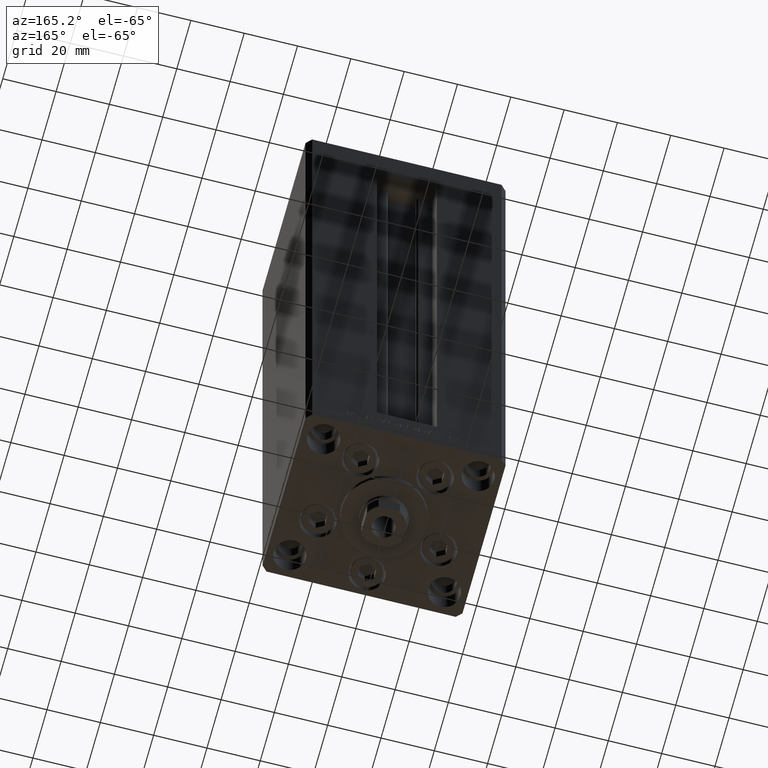
[diagram: clean part render]
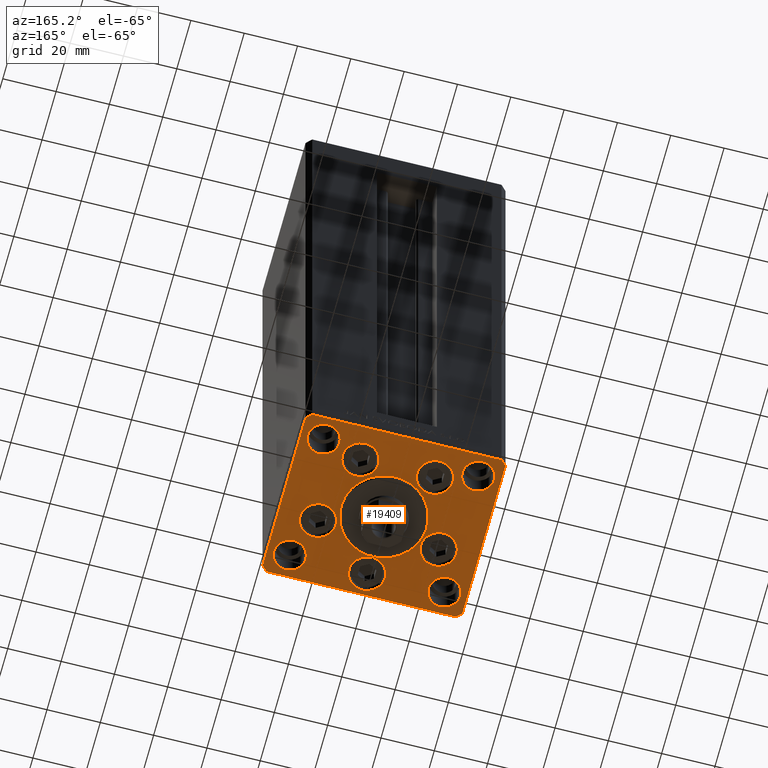
[diagram: same view with one face highlighted and labeled with its STEP entity id]
A machine part, auxiliary view. The second image highlights one B-rep face of the part: STEP entity #19409.
In plain terms, the highlighted planar face has unit normal (0, 0, -1).
Its self-contained STEP definition (entity closure, byte-faithful):
#82 = VECTOR ( 'NONE', #10436, 1000.000000000000000 ) ;
#302 = AXIS2_PLACEMENT_3D ( 'NONE', #42138, #41143, #10978 ) ;
#314 = EDGE_CURVE ( 'NONE', #37333, #29280, #16285, .T. ) ;
#379 = CIRCLE ( 'NONE', #6804, 6.750000000001552536 ) ;
#402 = EDGE_CURVE ( 'NONE', #15546, #27698, #30509, .T. ) ;
#845 = CARTESIAN_POINT ( 'NONE',  ( -35.00000000000000000, 24.00000000000000711, 0.000000000000000000 ) ) ;
#1589 = CARTESIAN_POINT ( 'NONE',  ( 35.50000000000000000, 32.49999999999999289, 0.000000000000000000 ) ) ;
#1777 = CIRCLE ( 'NONE', #41907, 6.750000000000000000 ) ;
#1966 = EDGE_LOOP ( 'NONE', ( #11076, #41817, #37483, #8220, #6251, #31739, #31327, #39718 ) ) ;
#2096 = CARTESIAN_POINT ( 'NONE',  ( 0.000000000000000000, 0.000000000000000000, 0.000000000000000000 ) ) ;
#2154 = DIRECTION ( 'NONE',  ( -0.7071067811865524577, -0.7071067811865426878, 0.000000000000000000 ) ) ;
#2280 = DIRECTION ( 'NONE',  ( 0.000000000000000000, 0.000000000000000000, 1.000000000000000000 ) ) ;
#2317 = DIRECTION ( 'NONE',  ( 0.000000000000000000, 0.000000000000000000, 1.000000000000000000 ) ) ;
#2437 = CARTESIAN_POINT ( 'NONE',  ( -23.00000000000000000, 24.00000000000000711, 0.000000000000000000 ) ) ;
#2729 = EDGE_CURVE ( 'NONE', #39536, #19084, #27952, .T. ) ;
#2884 = DIRECTION ( 'NONE',  ( 0.000000000000000000, 0.000000000000000000, 1.000000000000000000 ) ) ;
#3077 = EDGE_LOOP ( 'NONE', ( #46588, #42529 ) ) ;
#4240 = LINE ( 'NONE', #33899, #40520 ) ;
#4404 = CIRCLE ( 'NONE', #17249, 5.999999999999998224 ) ;
#4605 = DIRECTION ( 'NONE',  ( 0.000000000000000000, 0.000000000000000000, 1.000000000000000000 ) ) ;
#4637 = CARTESIAN_POINT ( 'NONE',  ( -7.241068579633241242, 19.50000000000000000, 0.000000000000000000 ) ) ;
#4753 = VERTEX_POINT ( 'NONE', #44340 ) ;
#4800 = EDGE_CURVE ( 'NONE', #29280, #37333, #27657, .T. ) ;
#4821 = ORIENTED_EDGE ( 'NONE', *, *, #20483, .F. ) ;
#5422 = CARTESIAN_POINT ( 'NONE',  ( -13.99106857963324124, 19.50000000000000000, 0.000000000000000000 ) ) ;
#5745 = EDGE_CURVE ( 'NONE', #38572, #23529, #39766, .T. ) ;
#6066 = DIRECTION ( 'NONE',  ( 0.000000000000000000, 0.000000000000000000, 1.000000000000000000 ) ) ;
#6108 = FACE_BOUND ( 'NONE', #3077, .T. ) ;
#6251 = ORIENTED_EDGE ( 'NONE', *, *, #12186, .T. ) ;
#6294 = DIRECTION ( 'NONE',  ( 1.000000000000000000, 0.000000000000000000, 0.000000000000000000 ) ) ;
#6548 = EDGE_CURVE ( 'NONE', #30780, #12603, #40558, .T. ) ;
#6579 = ORIENTED_EDGE ( 'NONE', *, *, #13567, .F. ) ;
#6591 = FACE_BOUND ( 'NONE', #23910, .T. ) ;
#6638 = AXIS2_PLACEMENT_3D ( 'NONE', #2096, #36765, #28952 ) ;
#6736 = AXIS2_PLACEMENT_3D ( 'NONE', #14997, #22035, #22280 ) ;
#6767 = AXIS2_PLACEMENT_3D ( 'NONE', #44509, #6066, #17627 ) ;
#6804 = AXIS2_PLACEMENT_3D ( 'NONE', #23935, #4605, #35496 ) ;
#7035 = CIRCLE ( 'NONE', #43154, 6.000000000000001776 ) ;
#7557 = EDGE_CURVE ( 'NONE', #42644, #21799, #36012, .T. ) ;
#8220 = ORIENTED_EDGE ( 'NONE', *, *, #2729, .T. ) ;
#8541 = EDGE_CURVE ( 'NONE', #12603, #30780, #13605, .T. ) ;
#9098 = DIRECTION ( 'NONE',  ( 0.000000000000000000, 0.000000000000000000, 1.000000000000000000 ) ) ;
#9135 = CIRCLE ( 'NONE', #6736, 6.000000000000001776 ) ;
#9364 = CARTESIAN_POINT ( 'NONE',  ( 0.000000000000000000, -6.938893903907228378E-15, 0.000000000000000000 ) ) ;
#9818 = CARTESIAN_POINT ( 'NONE',  ( -6.750000000001552536, -24.00000000000001066, 0.000000000000000000 ) ) ;
#9833 = DIRECTION ( 'NONE',  ( 0.000000000000000000, 0.000000000000000000, 1.000000000000000000 ) ) ;
#10436 = DIRECTION ( 'NONE',  ( -0.7071067811865524577, 0.7071067811865426878, 0.000000000000000000 ) ) ;
#10655 = DIRECTION ( 'NONE',  ( 0.000000000000000000, 0.000000000000000000, 1.000000000000000000 ) ) ;
#10978 = DIRECTION ( 'NONE',  ( 1.000000000000000000, 0.000000000000000000, 0.000000000000000000 ) ) ;
#11076 = ORIENTED_EDGE ( 'NONE', *, *, #402, .T. ) ;
#11090 = ORIENTED_EDGE ( 'NONE', *, *, #43282, .F. ) ;
#11112 = VERTEX_POINT ( 'NONE', #27530 ) ;
#11392 = LINE ( 'NONE', #45592, #49105 ) ;
#11477 = AXIS2_PLACEMENT_3D ( 'NONE', #14555, #18120, #25651 ) ;
#11750 = DIRECTION ( 'NONE',  ( 1.000000000000000000, 0.000000000000000000, 0.000000000000000000 ) ) ;
#11880 = VERTEX_POINT ( 'NONE', #17555 ) ;
#12005 = EDGE_LOOP ( 'NONE', ( #20166, #6579 ) ) ;
#12186 = EDGE_CURVE ( 'NONE', #19084, #42644, #32561, .T. ) ;
#12313 = ORIENTED_EDGE ( 'NONE', *, *, #34603, .F. ) ;
#12603 = VERTEX_POINT ( 'NONE', #37272 ) ;
#13095 = AXIS2_PLACEMENT_3D ( 'NONE', #30838, #20035, #11750 ) ;
#13367 = DIRECTION ( 'NONE',  ( 0.000000000000000000, 1.000000000000000000, 0.000000000000000000 ) ) ;
#13448 = ORIENTED_EDGE ( 'NONE', *, *, #41443, .F. ) ;
#13561 = DIRECTION ( 'NONE',  ( 0.000000000000000000, 0.000000000000000000, 1.000000000000000000 ) ) ;
#13567 = EDGE_CURVE ( 'NONE', #38862, #33352, #1777, .T. ) ;
#13605 = CIRCLE ( 'NONE', #32875, 6.000000000000001776 ) ;
#13625 = EDGE_CURVE ( 'NONE', #11880, #39536, #11392, .T. ) ;
#13874 = FACE_BOUND ( 'NONE', #14969, .T. ) ;
#14132 = FACE_BOUND ( 'NONE', #44066, .T. ) ;
#14555 = CARTESIAN_POINT ( 'NONE',  ( 29.00000000000000000, 24.00000000000000355, 0.000000000000000000 ) ) ;
#14581 = VERTEX_POINT ( 'NONE', #845 ) ;
#14620 = AXIS2_PLACEMENT_3D ( 'NONE', #40025, #48045, #32466 ) ;
#14969 = EDGE_LOOP ( 'NONE', ( #34237, #39248 ) ) ;
#14997 = CARTESIAN_POINT ( 'NONE',  ( -29.00000000000000000, 24.00000000000000711, 0.000000000000000000 ) ) ;
#15324 = DIRECTION ( 'NONE',  ( 1.000000000000000000, 0.000000000000000000, 0.000000000000000000 ) ) ;
#15546 = VERTEX_POINT ( 'NONE', #30956 ) ;
#15644 = CARTESIAN_POINT ( 'NONE',  ( 23.00000000000000000, 24.00000000000000355, 0.000000000000000000 ) ) ;
#15692 = CARTESIAN_POINT ( 'NONE',  ( -37.50000000000000000, -30.50000000000004263, 0.000000000000000000 ) ) ;
#15762 = EDGE_LOOP ( 'NONE', ( #21977, #22626 ) ) ;
#16285 = CIRCLE ( 'NONE', #48389, 6.749999999999997335 ) ;
#16847 = EDGE_CURVE ( 'NONE', #24131, #4753, #42013, .T. ) ;
#16908 = DIRECTION ( 'NONE',  ( -1.000000000000000000, -1.954618001100627573E-16, 0.000000000000000000 ) ) ;
#17059 = CIRCLE ( 'NONE', #49139, 6.000000000000001776 ) ;
#17126 = CIRCLE ( 'NONE', #11477, 6.000000000000001776 ) ;
#17249 = AXIS2_PLACEMENT_3D ( 'NONE', #42704, #41961, #15324 ) ;
#17307 = CARTESIAN_POINT ( 'NONE',  ( 23.00000000000000711, -23.99999999999999645, 0.000000000000000000 ) ) ;
#17555 = CARTESIAN_POINT ( 'NONE',  ( 35.50000000000001421, -32.49999999999992184, 0.000000000000000000 ) ) ;
#17627 = DIRECTION ( 'NONE',  ( 1.000000000000000000, 0.000000000000000000, 0.000000000000000000 ) ) ;
#18002 = CIRCLE ( 'NONE', #30826, 6.749999999999999112 ) ;
#18032 = CIRCLE ( 'NONE', #43721, 5.999999999999998224 ) ;
#18120 = DIRECTION ( 'NONE',  ( 0.000000000000000000, 0.000000000000000000, 1.000000000000000000 ) ) ;
#18500 = EDGE_CURVE ( 'NONE', #23529, #38572, #20234, .T. ) ;
#18617 = EDGE_CURVE ( 'NONE', #28364, #14581, #17059, .T. ) ;
#18884 = AXIS2_PLACEMENT_3D ( 'NONE', #25382, #43471, #24377 ) ;
#19084 = VERTEX_POINT ( 'NONE', #31051 ) ;
#19106 = ORIENTED_EDGE ( 'NONE', *, *, #41428, .F. ) ;
#19409 = ADVANCED_FACE ( 'NONE', ( #6108, #29688, #26184, #48555, #44552, #6591, #37502, #14132, #41515, #13874, #29458 ), #22397, .T. ) ;
#19920 = VERTEX_POINT ( 'NONE', #17307 ) ;
#19996 = CARTESIAN_POINT ( 'NONE',  ( 7.241068579633242130, 19.50000000000000000, 0.000000000000000000 ) ) ;
#20035 = DIRECTION ( 'NONE',  ( 0.000000000000000000, 0.000000000000000000, 1.000000000000000000 ) ) ;
#20166 = ORIENTED_EDGE ( 'NONE', *, *, #43296, .F. ) ;
#20234 = CIRCLE ( 'NONE', #14620, 16.00000000000000355 ) ;
#20483 = EDGE_CURVE ( 'NONE', #28932, #38364, #17126, .T. ) ;
#20751 = LINE ( 'NONE', #32788, #41345 ) ;
#21706 = CARTESIAN_POINT ( 'NONE',  ( -35.50000000000001421, -32.50000000000000711, 0.000000000000000000 ) ) ;
#21799 = VERTEX_POINT ( 'NONE', #24695 ) ;
#21977 = ORIENTED_EDGE ( 'NONE', *, *, #8541, .F. ) ;
#22035 = DIRECTION ( 'NONE',  ( 0.000000000000000000, 0.000000000000000000, 1.000000000000000000 ) ) ;
#22280 = DIRECTION ( 'NONE',  ( 1.000000000000000000, 0.000000000000000000, 0.000000000000000000 ) ) ;
#22397 = PLANE ( 'NONE',  #6638 ) ;
#22454 = DIRECTION ( 'NONE',  ( 0.7071067811865463515, 0.7071067811865487940, 0.000000000000000000 ) ) ;
#22599 = CIRCLE ( 'NONE', #49121, 6.750000000000009770 ) ;
#22626 = ORIENTED_EDGE ( 'NONE', *, *, #6548, .F. ) ;
#22986 = VERTEX_POINT ( 'NONE', #24645 ) ;
#23284 = EDGE_CURVE ( 'NONE', #11112, #15546, #4240, .T. ) ;
#23401 = DIRECTION ( 'NONE',  ( 1.000000000000000000, 0.000000000000000000, 0.000000000000000000 ) ) ;
#23529 = VERTEX_POINT ( 'NONE', #40157 ) ;
#23597 = ORIENTED_EDGE ( 'NONE', *, *, #46751, .F. ) ;
#23636 = AXIS2_PLACEMENT_3D ( 'NONE', #42061, #2884, #48846 ) ;
#23910 = EDGE_LOOP ( 'NONE', ( #11090, #35207 ) ) ;
#23935 = CARTESIAN_POINT ( 'NONE',  ( 0.000000000000000000, -24.00000000000001066, 0.000000000000000000 ) ) ;
#24131 = VERTEX_POINT ( 'NONE', #9818 ) ;
#24272 = CARTESIAN_POINT ( 'NONE',  ( -35.00000000000000000, -23.99999999999999645, 0.000000000000000000 ) ) ;
#24377 = DIRECTION ( 'NONE',  ( 1.000000000000000000, 0.000000000000000000, 0.000000000000000000 ) ) ;
#24442 = AXIS2_PLACEMENT_3D ( 'NONE', #40527, #24698, #28451 ) ;
#24645 = CARTESIAN_POINT ( 'NONE',  ( -29.37741699796953654, -8.000000000000000000, 0.000000000000000000 ) ) ;
#24695 = CARTESIAN_POINT ( 'NONE',  ( -35.50000000000000711, 32.49999999999997868, 0.000000000000000000 ) ) ;
#24698 = DIRECTION ( 'NONE',  ( 0.000000000000000000, 0.000000000000000000, 1.000000000000000000 ) ) ;
#25019 = CARTESIAN_POINT ( 'NONE',  ( 37.50000000000000711, 30.50000000000001421, 0.000000000000000000 ) ) ;
#25382 = CARTESIAN_POINT ( 'NONE',  ( -29.00000000000000000, -23.99999999999999645, 0.000000000000000000 ) ) ;
#25651 = DIRECTION ( 'NONE',  ( 1.000000000000000000, 0.000000000000000000, 0.000000000000000000 ) ) ;
#25747 = EDGE_CURVE ( 'NONE', #27698, #11880, #44336, .T. ) ;
#25919 = CARTESIAN_POINT ( 'NONE',  ( -29.00000000000000000, 24.00000000000000711, 0.000000000000000000 ) ) ;
#26123 = DIRECTION ( 'NONE',  ( 2.275047181608926165E-16, -1.000000000000000000, 0.000000000000000000 ) ) ;
#26184 = FACE_BOUND ( 'NONE', #33969, .T. ) ;
#26416 = VECTOR ( 'NONE', #16908, 1000.000000000000000 ) ;
#27489 = VERTEX_POINT ( 'NONE', #34875 ) ;
#27530 = CARTESIAN_POINT ( 'NONE',  ( -37.50000000000001421, 30.50000000000000000, 0.000000000000000000 ) ) ;
#27657 = CIRCLE ( 'NONE', #23636, 6.749999999999997335 ) ;
#27698 = VERTEX_POINT ( 'NONE', #48396 ) ;
#27731 = ORIENTED_EDGE ( 'NONE', *, *, #4800, .F. ) ;
#27952 = LINE ( 'NONE', #47047, #29197 ) ;
#28181 = CARTESIAN_POINT ( 'NONE',  ( 29.00000000000000000, 24.00000000000000355, 0.000000000000000000 ) ) ;
#28364 = VERTEX_POINT ( 'NONE', #2437 ) ;
#28423 = CIRCLE ( 'NONE', #6767, 6.750000000000000000 ) ;
#28451 = DIRECTION ( 'NONE',  ( 1.000000000000000000, 0.000000000000000000, 0.000000000000000000 ) ) ;
#28580 = CARTESIAN_POINT ( 'NONE',  ( 29.37741699796954364, -8.000000000000000000, 0.000000000000000000 ) ) ;
#28932 = VERTEX_POINT ( 'NONE', #35632 ) ;
#28952 = DIRECTION ( 'NONE',  ( 1.000000000000000000, 0.000000000000000000, 0.000000000000000000 ) ) ;
#29025 = CARTESIAN_POINT ( 'NONE',  ( 35.50000000000000000, 32.49999999999999289, 0.000000000000000000 ) ) ;
#29197 = VECTOR ( 'NONE', #13367, 1000.000000000000000 ) ;
#29280 = VERTEX_POINT ( 'NONE', #19996 ) ;
#29353 = CARTESIAN_POINT ( 'NONE',  ( 35.00000000000000000, -23.99999999999999645, 0.000000000000000000 ) ) ;
#29389 = CARTESIAN_POINT ( 'NONE',  ( -29.00000000000000000, -23.99999999999999645, 0.000000000000000000 ) ) ;
#29458 = FACE_OUTER_BOUND ( 'NONE', #1966, .T. ) ;
#29688 = FACE_BOUND ( 'NONE', #12005, .T. ) ;
#30093 = AXIS2_PLACEMENT_3D ( 'NONE', #9364, #2317, #32953 ) ;
#30509 = LINE ( 'NONE', #15692, #42763 ) ;
#30780 = VERTEX_POINT ( 'NONE', #24272 ) ;
#30826 = AXIS2_PLACEMENT_3D ( 'NONE', #44252, #9833, #40497 ) ;
#30838 = CARTESIAN_POINT ( 'NONE',  ( 0.000000000000000000, -24.00000000000001066, 0.000000000000000000 ) ) ;
#30956 = CARTESIAN_POINT ( 'NONE',  ( -37.50000000000000000, -30.50000000000004263, 0.000000000000000000 ) ) ;
#31051 = CARTESIAN_POINT ( 'NONE',  ( 37.50000000000000711, 30.50000000000001421, 0.000000000000000000 ) ) ;
#31327 = ORIENTED_EDGE ( 'NONE', *, *, #45218, .T. ) ;
#31739 = ORIENTED_EDGE ( 'NONE', *, *, #7557, .T. ) ;
#31998 = ORIENTED_EDGE ( 'NONE', *, *, #314, .F. ) ;
#32161 = DIRECTION ( 'NONE',  ( 1.000000000000000000, 0.000000000000000000, 0.000000000000000000 ) ) ;
#32466 = DIRECTION ( 'NONE',  ( 1.000000000000000000, 0.000000000000000000, 0.000000000000000000 ) ) ;
#32561 = LINE ( 'NONE', #25019, #82 ) ;
#32788 = CARTESIAN_POINT ( 'NONE',  ( -35.50000000000000711, 32.49999999999997868, 0.000000000000000000 ) ) ;
#32875 = AXIS2_PLACEMENT_3D ( 'NONE', #29389, #2280, #6294 ) ;
#32953 = DIRECTION ( 'NONE',  ( 1.000000000000000000, 0.000000000000000000, 0.000000000000000000 ) ) ;
#33352 = VERTEX_POINT ( 'NONE', #4637 ) ;
#33375 = VECTOR ( 'NONE', #48103, 1000.000000000000000 ) ;
#33469 = DIRECTION ( 'NONE',  ( 0.000000000000000000, 0.000000000000000000, 1.000000000000000000 ) ) ;
#33694 = CARTESIAN_POINT ( 'NONE',  ( 37.50000000000000711, -30.49999999999992895, 0.000000000000000000 ) ) ;
#33899 = CARTESIAN_POINT ( 'NONE',  ( -37.50000000000001421, 30.50000000000000000, 0.000000000000000000 ) ) ;
#33969 = EDGE_LOOP ( 'NONE', ( #31998, #27731 ) ) ;
#34039 = DIRECTION ( 'NONE',  ( 0.7071067811865512365, -0.7071067811865439090, 0.000000000000000000 ) ) ;
#34237 = ORIENTED_EDGE ( 'NONE', *, *, #43562, .F. ) ;
#34257 = EDGE_LOOP ( 'NONE', ( #34296, #13448 ) ) ;
#34296 = ORIENTED_EDGE ( 'NONE', *, *, #37000, .F. ) ;
#34603 = EDGE_CURVE ( 'NONE', #38364, #28932, #7035, .T. ) ;
#34875 = CARTESIAN_POINT ( 'NONE',  ( -15.87741699796953476, -8.000000000000000000, 0.000000000000000000 ) ) ;
#34984 = CARTESIAN_POINT ( 'NONE',  ( 22.62741699796953299, -8.000000000000000000, 0.000000000000000000 ) ) ;
#35137 = EDGE_LOOP ( 'NONE', ( #23597, #41601 ) ) ;
#35207 = ORIENTED_EDGE ( 'NONE', *, *, #46859, .F. ) ;
#35496 = DIRECTION ( 'NONE',  ( 1.000000000000000000, 0.000000000000000000, 0.000000000000000000 ) ) ;
#35613 = CIRCLE ( 'NONE', #302, 6.750000000000009770 ) ;
#35632 = CARTESIAN_POINT ( 'NONE',  ( 35.00000000000000000, 24.00000000000000355, 0.000000000000000000 ) ) ;
#36012 = LINE ( 'NONE', #1589, #26416 ) ;
#36765 = DIRECTION ( 'NONE',  ( -0.000000000000000000, 0.000000000000000000, 1.000000000000000000 ) ) ;
#37000 = EDGE_CURVE ( 'NONE', #47320, #44626, #22599, .T. ) ;
#37272 = CARTESIAN_POINT ( 'NONE',  ( -23.00000000000000000, -23.99999999999999645, 0.000000000000000000 ) ) ;
#37295 = CIRCLE ( 'NONE', #24442, 6.749999999999999112 ) ;
#37333 = VERTEX_POINT ( 'NONE', #48259 ) ;
#37483 = ORIENTED_EDGE ( 'NONE', *, *, #13625, .T. ) ;
#37502 = FACE_BOUND ( 'NONE', #45893, .T. ) ;
#38052 = DIRECTION ( 'NONE',  ( 1.000000000000000000, 0.000000000000000000, 0.000000000000000000 ) ) ;
#38364 = VERTEX_POINT ( 'NONE', #15644 ) ;
#38561 = DIRECTION ( 'NONE',  ( 1.000000000000000000, 0.000000000000000000, 0.000000000000000000 ) ) ;
#38572 = VERTEX_POINT ( 'NONE', #49004 ) ;
#38747 = DIRECTION ( 'NONE',  ( 0.000000000000000000, 0.000000000000000000, 1.000000000000000000 ) ) ;
#38862 = VERTEX_POINT ( 'NONE', #46976 ) ;
#39248 = ORIENTED_EDGE ( 'NONE', *, *, #47104, .F. ) ;
#39536 = VERTEX_POINT ( 'NONE', #33694 ) ;
#39718 = ORIENTED_EDGE ( 'NONE', *, *, #23284, .T. ) ;
#39766 = CIRCLE ( 'NONE', #30093, 16.00000000000000355 ) ;
#40025 = CARTESIAN_POINT ( 'NONE',  ( 0.000000000000000000, -6.938893903907228378E-15, 0.000000000000000000 ) ) ;
#40157 = CARTESIAN_POINT ( 'NONE',  ( 16.00000000000000355, -4.979459025271462852E-15, 0.000000000000000000 ) ) ;
#40497 = DIRECTION ( 'NONE',  ( 1.000000000000000000, 0.000000000000000000, 0.000000000000000000 ) ) ;
#40520 = VECTOR ( 'NONE', #26123, 1000.000000000000000 ) ;
#40527 = CARTESIAN_POINT ( 'NONE',  ( -22.62741699796953299, -8.000000000000000000, 0.000000000000000000 ) ) ;
#40558 = CIRCLE ( 'NONE', #18884, 6.000000000000001776 ) ;
#41143 = DIRECTION ( 'NONE',  ( 0.000000000000000000, 0.000000000000000000, 1.000000000000000000 ) ) ;
#41345 = VECTOR ( 'NONE', #2154, 1000.000000000000000 ) ;
#41428 = EDGE_CURVE ( 'NONE', #14581, #28364, #9135, .T. ) ;
#41443 = EDGE_CURVE ( 'NONE', #44626, #47320, #35613, .T. ) ;
#41515 = FACE_BOUND ( 'NONE', #15762, .T. ) ;
#41601 = ORIENTED_EDGE ( 'NONE', *, *, #16847, .F. ) ;
#41817 = ORIENTED_EDGE ( 'NONE', *, *, #25747, .T. ) ;
#41907 = AXIS2_PLACEMENT_3D ( 'NONE', #5422, #10655, #38052 ) ;
#41961 = DIRECTION ( 'NONE',  ( 0.000000000000000000, 0.000000000000000000, 1.000000000000000000 ) ) ;
#42013 = CIRCLE ( 'NONE', #13095, 6.750000000001552536 ) ;
#42061 = CARTESIAN_POINT ( 'NONE',  ( 13.99106857963324124, 19.50000000000000000, 0.000000000000000000 ) ) ;
#42138 = CARTESIAN_POINT ( 'NONE',  ( 22.62741699796953299, -8.000000000000000000, 0.000000000000000000 ) ) ;
#42331 = DIRECTION ( 'NONE',  ( 0.000000000000000000, 0.000000000000000000, 1.000000000000000000 ) ) ;
#42529 = ORIENTED_EDGE ( 'NONE', *, *, #18500, .F. ) ;
#42644 = VERTEX_POINT ( 'NONE', #29025 ) ;
#42704 = CARTESIAN_POINT ( 'NONE',  ( 29.00000000000000355, -23.99999999999999645, 0.000000000000000000 ) ) ;
#42763 = VECTOR ( 'NONE', #34039, 1000.000000000000000 ) ;
#43154 = AXIS2_PLACEMENT_3D ( 'NONE', #28181, #9098, #43517 ) ;
#43282 = EDGE_CURVE ( 'NONE', #27489, #22986, #18002, .T. ) ;
#43296 = EDGE_CURVE ( 'NONE', #33352, #38862, #28423, .T. ) ;
#43471 = DIRECTION ( 'NONE',  ( 0.000000000000000000, 0.000000000000000000, 1.000000000000000000 ) ) ;
#43517 = DIRECTION ( 'NONE',  ( 1.000000000000000000, 0.000000000000000000, 0.000000000000000000 ) ) ;
#43562 = EDGE_CURVE ( 'NONE', #43741, #19920, #4404, .T. ) ;
#43721 = AXIS2_PLACEMENT_3D ( 'NONE', #47492, #13561, #32161 ) ;
#43741 = VERTEX_POINT ( 'NONE', #29353 ) ;
#44066 = EDGE_LOOP ( 'NONE', ( #46454, #19106 ) ) ;
#44252 = CARTESIAN_POINT ( 'NONE',  ( -22.62741699796953299, -8.000000000000000000, 0.000000000000000000 ) ) ;
#44336 = LINE ( 'NONE', #21706, #33375 ) ;
#44340 = CARTESIAN_POINT ( 'NONE',  ( 6.750000000001552536, -24.00000000000001066, 0.000000000000000000 ) ) ;
#44509 = CARTESIAN_POINT ( 'NONE',  ( -13.99106857963324124, 19.50000000000000000, 0.000000000000000000 ) ) ;
#44552 = FACE_BOUND ( 'NONE', #35137, .T. ) ;
#44626 = VERTEX_POINT ( 'NONE', #47248 ) ;
#44782 = DIRECTION ( 'NONE',  ( 1.000000000000000000, 0.000000000000000000, 0.000000000000000000 ) ) ;
#45218 = EDGE_CURVE ( 'NONE', #21799, #11112, #20751, .T. ) ;
#45592 = CARTESIAN_POINT ( 'NONE',  ( 35.50000000000001421, -32.49999999999992184, 0.000000000000000000 ) ) ;
#45893 = EDGE_LOOP ( 'NONE', ( #4821, #12313 ) ) ;
#46454 = ORIENTED_EDGE ( 'NONE', *, *, #18617, .F. ) ;
#46588 = ORIENTED_EDGE ( 'NONE', *, *, #5745, .F. ) ;
#46751 = EDGE_CURVE ( 'NONE', #4753, #24131, #379, .T. ) ;
#46859 = EDGE_CURVE ( 'NONE', #22986, #27489, #37295, .T. ) ;
#46976 = CARTESIAN_POINT ( 'NONE',  ( -20.74106857963324302, 19.50000000000000000, 0.000000000000000000 ) ) ;
#47047 = CARTESIAN_POINT ( 'NONE',  ( 37.50000000000000711, -30.49999999999992895, 0.000000000000000000 ) ) ;
#47104 = EDGE_CURVE ( 'NONE', #19920, #43741, #18032, .T. ) ;
#47248 = CARTESIAN_POINT ( 'NONE',  ( 15.87741699796952410, -8.000000000000000000, 0.000000000000000000 ) ) ;
#47320 = VERTEX_POINT ( 'NONE', #28580 ) ;
#47492 = CARTESIAN_POINT ( 'NONE',  ( 29.00000000000000355, -23.99999999999999645, 0.000000000000000000 ) ) ;
#48045 = DIRECTION ( 'NONE',  ( 0.000000000000000000, 0.000000000000000000, 1.000000000000000000 ) ) ;
#48103 = DIRECTION ( 'NONE',  ( 1.000000000000000000, 1.172770800660376149E-15, 0.000000000000000000 ) ) ;
#48259 = CARTESIAN_POINT ( 'NONE',  ( 20.74106857963323947, 19.50000000000000000, 0.000000000000000000 ) ) ;
#48389 = AXIS2_PLACEMENT_3D ( 'NONE', #49363, #42331, #38561 ) ;
#48396 = CARTESIAN_POINT ( 'NONE',  ( -35.50000000000001421, -32.50000000000000711, 0.000000000000000000 ) ) ;
#48555 = FACE_BOUND ( 'NONE', #34257, .T. ) ;
#48846 = DIRECTION ( 'NONE',  ( 1.000000000000000000, 0.000000000000000000, 0.000000000000000000 ) ) ;
#49004 = CARTESIAN_POINT ( 'NONE',  ( -16.00000000000000355, -6.938893903907228378E-15, 0.000000000000000000 ) ) ;
#49105 = VECTOR ( 'NONE', #22454, 1000.000000000000000 ) ;
#49121 = AXIS2_PLACEMENT_3D ( 'NONE', #34984, #38747, #23401 ) ;
#49139 = AXIS2_PLACEMENT_3D ( 'NONE', #25919, #33469, #44782 ) ;
#49363 = CARTESIAN_POINT ( 'NONE',  ( 13.99106857963324124, 19.50000000000000000, 0.000000000000000000 ) ) ;